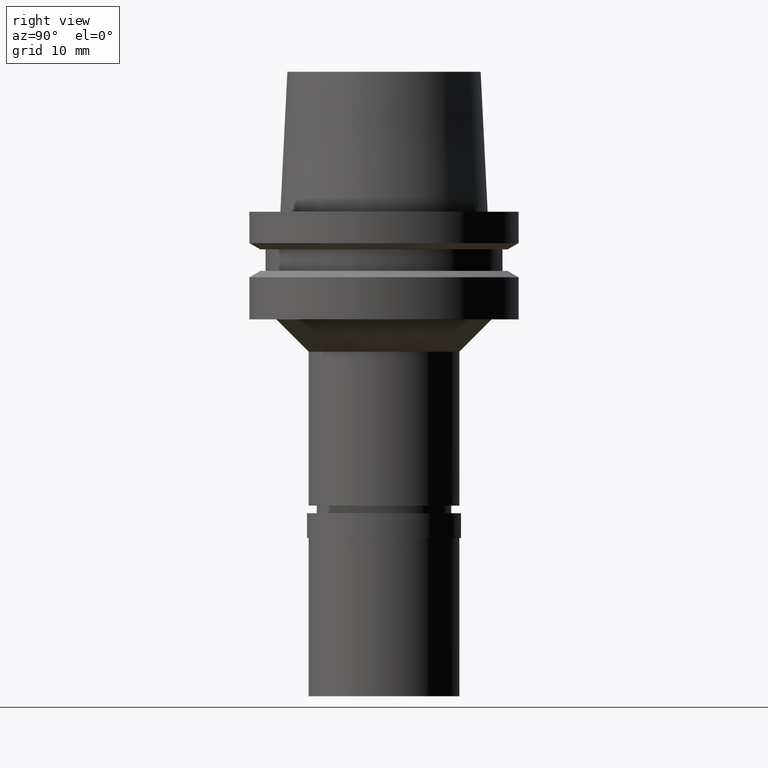
[diagram: clean part render]
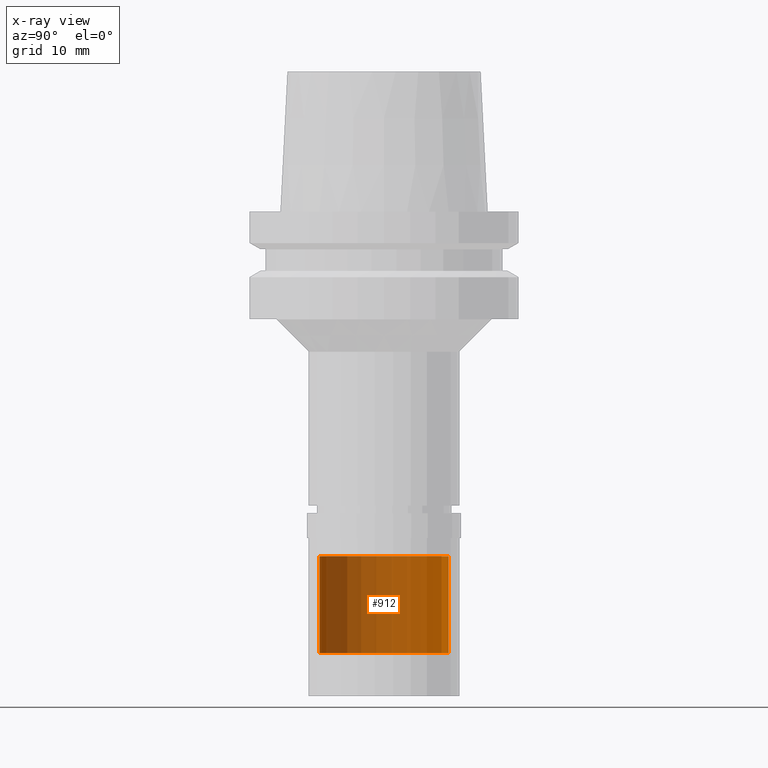
[diagram: x-ray — body ghosted, one internal face saturated and labeled with its STEP entity id]
A machine part, right view, then the same camera in x-ray: the body is ghosted and one INTERNAL B-rep face — a face not visible from any outside direction — is saturated and labeled: STEP entity #912.
In plain terms, the highlighted cylindrical surface (partial cylindrical patch) has radius 6 mm, axis along (0, 0, 1).
Its self-contained STEP definition (entity closure, byte-faithful):
#52 = CARTESIAN_POINT ( 'NONE',  ( 0.0000000000000000000, -6.000000000000000000, -32.00000000000000000 ) ) ;
#78 = DIRECTION ( 'NONE',  ( 0.0000000000000000000, -1.000000000000000000, 0.0000000000000000000 ) ) ;
#83 = ORIENTED_EDGE ( 'NONE', *, *, #1457, .T. ) ;
#108 = CARTESIAN_POINT ( 'NONE',  ( 0.0000000000000000000, -6.000000000000000000, -41.00000000000000000 ) ) ;
#149 = AXIS2_PLACEMENT_3D ( 'NONE', #626, #2301, #1265 ) ;
#312 = ORIENTED_EDGE ( 'NONE', *, *, #1761, .T. ) ;
#351 = CARTESIAN_POINT ( 'NONE',  ( 0.0000000000000000000, 6.000000000000000000, -32.00000000000000000 ) ) ;
#366 = CARTESIAN_POINT ( 'NONE',  ( 0.0000000000000000000, 6.000000000000000000, -32.00000000000000000 ) ) ;
#371 = LINE ( 'NONE', #1380, #833 ) ;
#626 = CARTESIAN_POINT ( 'NONE',  ( 0.0000000000000000000, 0.0000000000000000000, -43.70000000000000284 ) ) ;
#729 = LINE ( 'NONE', #366, #851 ) ;
#747 = CARTESIAN_POINT ( 'NONE',  ( 0.0000000000000000000, 6.000000000000000000, -41.00000000000000000 ) ) ;
#825 = ORIENTED_EDGE ( 'NONE', *, *, #1722, .T. ) ;
#833 = VECTOR ( 'NONE', #1593, 1000.000000000000000 ) ;
#851 = VECTOR ( 'NONE', #1217, 1000.000000000000000 ) ;
#894 = CARTESIAN_POINT ( 'NONE',  ( 0.0000000000000000000, 0.0000000000000000000, -41.00000000000000000 ) ) ;
#912 = ADVANCED_FACE ( 'NONE', ( #2267 ), #1663, .T. ) ;
#1107 = CIRCLE ( 'NONE', #1760, 6.000000000000000000 ) ;
#1217 = DIRECTION ( 'NONE',  ( 0.0000000000000000000, 0.0000000000000000000, -1.000000000000000000 ) ) ;
#1265 = DIRECTION ( 'NONE',  ( 0.0000000000000000000, 1.000000000000000000, 0.0000000000000000000 ) ) ;
#1316 = CARTESIAN_POINT ( 'NONE',  ( 0.0000000000000000000, 0.0000000000000000000, -32.00000000000000000 ) ) ;
#1380 = CARTESIAN_POINT ( 'NONE',  ( 0.0000000000000000000, -6.000000000000000000, -32.00000000000000000 ) ) ;
#1446 = AXIS2_PLACEMENT_3D ( 'NONE', #1316, #2561, #78 ) ;
#1457 = EDGE_CURVE ( 'NONE', #2540, #2389, #729, .T. ) ;
#1519 = DIRECTION ( 'NONE',  ( 0.0000000000000000000, 1.000000000000000000, 0.0000000000000000000 ) ) ;
#1593 = DIRECTION ( 'NONE',  ( 0.0000000000000000000, 0.0000000000000000000, -1.000000000000000000 ) ) ;
#1663 = CYLINDRICAL_SURFACE ( 'NONE', #149, 6.000000000000000000 ) ;
#1715 = VERTEX_POINT ( 'NONE', #52 ) ;
#1722 = EDGE_CURVE ( 'NONE', #2389, #1912, #1107, .T. ) ;
#1756 = DIRECTION ( 'NONE',  ( 0.0000000000000000000, 0.0000000000000000000, 1.000000000000000000 ) ) ;
#1760 = AXIS2_PLACEMENT_3D ( 'NONE', #894, #1756, #1519 ) ;
#1761 = EDGE_CURVE ( 'NONE', #1715, #2540, #2155, .T. ) ;
#1897 = EDGE_LOOP ( 'NONE', ( #825, #2512, #312, #83 ) ) ;
#1912 = VERTEX_POINT ( 'NONE', #108 ) ;
#2010 = EDGE_CURVE ( 'NONE', #1715, #1912, #371, .T. ) ;
#2155 = CIRCLE ( 'NONE', #1446, 6.000000000000000000 ) ;
#2267 = FACE_OUTER_BOUND ( 'NONE', #1897, .T. ) ;
#2301 = DIRECTION ( 'NONE',  ( 0.0000000000000000000, 0.0000000000000000000, 1.000000000000000000 ) ) ;
#2389 = VERTEX_POINT ( 'NONE', #747 ) ;
#2512 = ORIENTED_EDGE ( 'NONE', *, *, #2010, .F. ) ;
#2540 = VERTEX_POINT ( 'NONE', #351 ) ;
#2561 = DIRECTION ( 'NONE',  ( 0.0000000000000000000, 0.0000000000000000000, -1.000000000000000000 ) ) ;